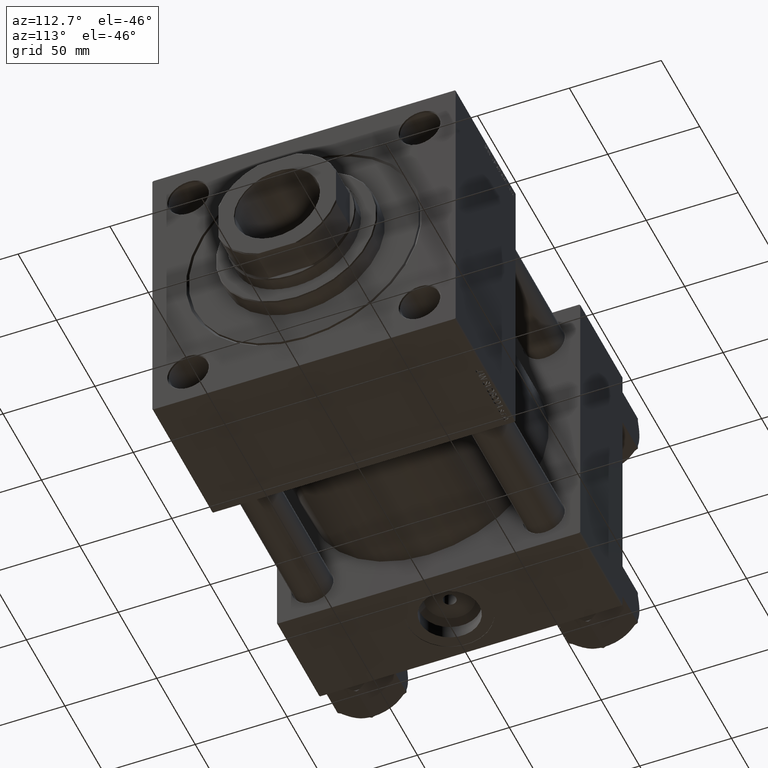
[diagram: clean part render]
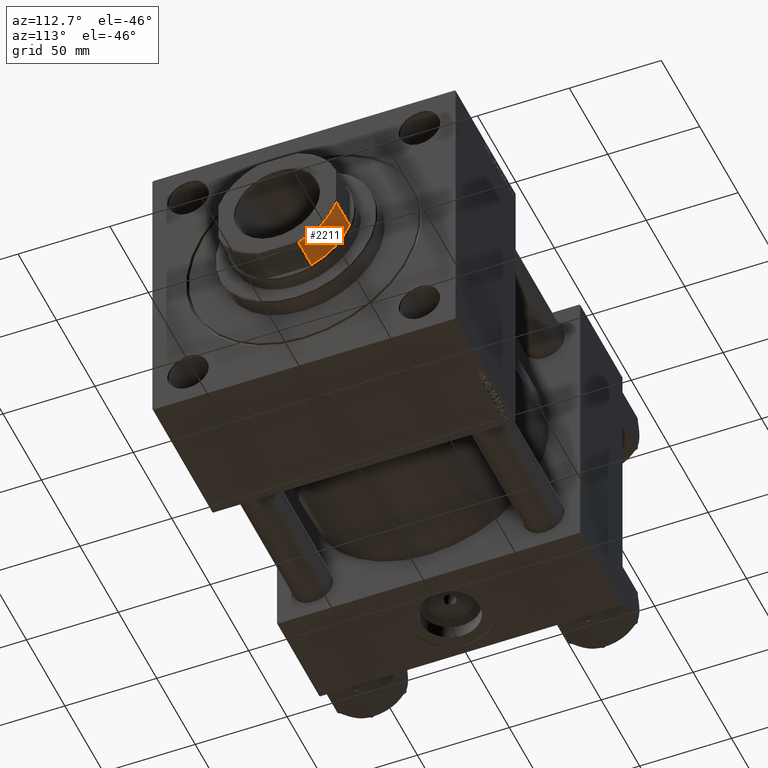
[diagram: same view with one face highlighted and labeled with its STEP entity id]
A machine part, auxiliary view. The second image highlights one B-rep face of the part: STEP entity #2211.
In plain terms, the highlighted cylindrical surface (partial cylindrical patch) has radius 34 mm, axis along (1, 0, 0).
Its self-contained STEP definition (entity closure, byte-faithful):
#559 = CIRCLE ( 'NONE', #4807, 34.00000000000000000 ) ;
#1491 = DIRECTION ( 'NONE',  ( 1.000000000000000000, -8.881784197001252323E-16, 0.000000000000000000 ) ) ;
#2211 = ADVANCED_FACE ( 'NONE', ( #12262 ), #28491, .T. ) ;
#2808 = CARTESIAN_POINT ( 'NONE',  ( -11.48912529307606079, 32.00000000000000000, 179.5000000000000284 ) ) ;
#4406 = DIRECTION ( 'NONE',  ( -0.000000000000000000, -0.000000000000000000, 1.000000000000000000 ) ) ;
#4807 = AXIS2_PLACEMENT_3D ( 'NONE', #29974, #5240, #33706 ) ;
#5240 = DIRECTION ( 'NONE',  ( -0.000000000000000000, -0.000000000000000000, 1.000000000000000000 ) ) ;
#6241 = ORIENTED_EDGE ( 'NONE', *, *, #44433, .T. ) ;
#6600 = VERTEX_POINT ( 'NONE', #24992 ) ;
#6669 = CARTESIAN_POINT ( 'NONE',  ( -31.99999999999998579, 11.48912529307610164, 196.4999999999997442 ) ) ;
#7308 = VERTEX_POINT ( 'NONE', #26170 ) ;
#7865 = LINE ( 'NONE', #49069, #45956 ) ;
#11996 = DIRECTION ( 'NONE',  ( -0.000000000000000000, -0.000000000000000000, 1.000000000000000000 ) ) ;
#12262 = FACE_OUTER_BOUND ( 'NONE', #13694, .T. ) ;
#13694 = EDGE_LOOP ( 'NONE', ( #47993, #6241, #32416, #26009 ) ) ;
#15148 = EDGE_CURVE ( 'NONE', #7308, #44058, #32756, .T. ) ;
#16778 = DIRECTION ( 'NONE',  ( 1.000000000000000000, 0.000000000000000000, 0.000000000000000000 ) ) ;
#23698 = AXIS2_PLACEMENT_3D ( 'NONE', #29268, #11996, #16778 ) ;
#24992 = CARTESIAN_POINT ( 'NONE',  ( -11.48912529307606256, 32.00000000000000000, 196.4999999999997442 ) ) ;
#26009 = ORIENTED_EDGE ( 'NONE', *, *, #26417, .T. ) ;
#26170 = CARTESIAN_POINT ( 'NONE',  ( -31.99999999999998579, 11.48912529307612118, 179.5000000000000284 ) ) ;
#26417 = EDGE_CURVE ( 'NONE', #46167, #7308, #559, .T. ) ;
#27497 = AXIS2_PLACEMENT_3D ( 'NONE', #37420, #33429, #1491 ) ;
#28491 = CYLINDRICAL_SURFACE ( 'NONE', #23698, 34.00000000000000000 ) ;
#29268 = CARTESIAN_POINT ( 'NONE',  ( 0.000000000000000000, 0.000000000000000000, -0.001000000000001000089 ) ) ;
#29974 = CARTESIAN_POINT ( 'NONE',  ( 0.000000000000000000, 0.000000000000000000, 179.5000000000000284 ) ) ;
#32416 = ORIENTED_EDGE ( 'NONE', *, *, #37894, .F. ) ;
#32756 = LINE ( 'NONE', #44189, #51195 ) ;
#33429 = DIRECTION ( 'NONE',  ( -0.000000000000000000, -0.000000000000000000, -1.000000000000000000 ) ) ;
#33706 = DIRECTION ( 'NONE',  ( -1.000000000000000000, -2.664535259100376091E-15, 0.000000000000000000 ) ) ;
#37420 = CARTESIAN_POINT ( 'NONE',  ( 0.000000000000000000, 0.000000000000000000, 196.4999999999997726 ) ) ;
#37894 = EDGE_CURVE ( 'NONE', #46167, #6600, #7865, .T. ) ;
#44058 = VERTEX_POINT ( 'NONE', #6669 ) ;
#44189 = CARTESIAN_POINT ( 'NONE',  ( -31.99999999999998579, 11.48912529307610164, -0.001000000000001000089 ) ) ;
#44433 = EDGE_CURVE ( 'NONE', #44058, #6600, #46986, .T. ) ;
#45956 = VECTOR ( 'NONE', #4406, 1000.000000000000000 ) ;
#46167 = VERTEX_POINT ( 'NONE', #2808 ) ;
#46986 = CIRCLE ( 'NONE', #27497, 34.00000000000000000 ) ;
#47993 = ORIENTED_EDGE ( 'NONE', *, *, #15148, .T. ) ;
#49069 = CARTESIAN_POINT ( 'NONE',  ( -11.48912529307606256, 32.00000000000000000, -0.001000000000001000089 ) ) ;
#51195 = VECTOR ( 'NONE', #52435, 1000.000000000000000 ) ;
#52435 = DIRECTION ( 'NONE',  ( -0.000000000000000000, -0.000000000000000000, 1.000000000000000000 ) ) ;